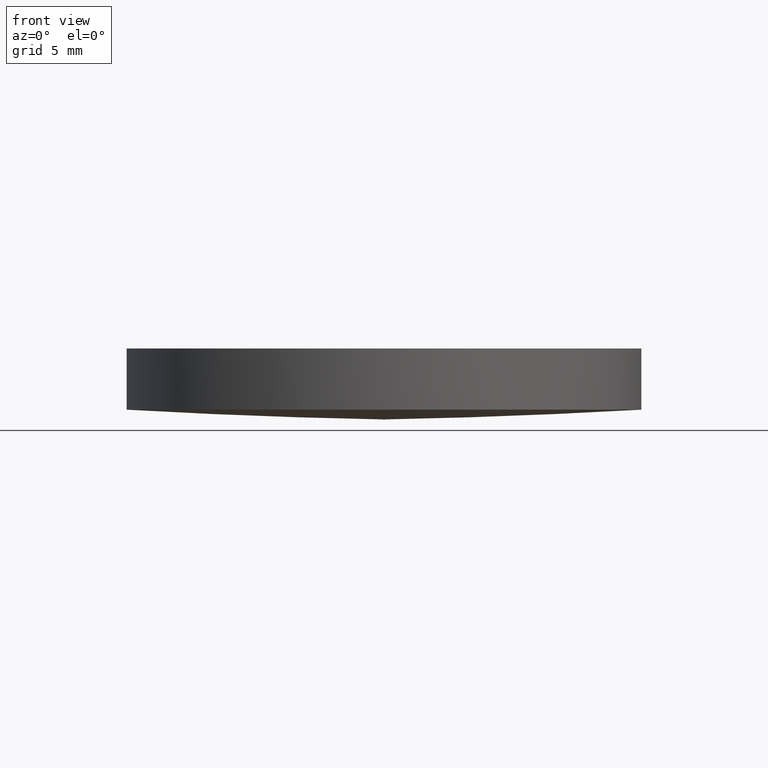
[diagram: clean part render]
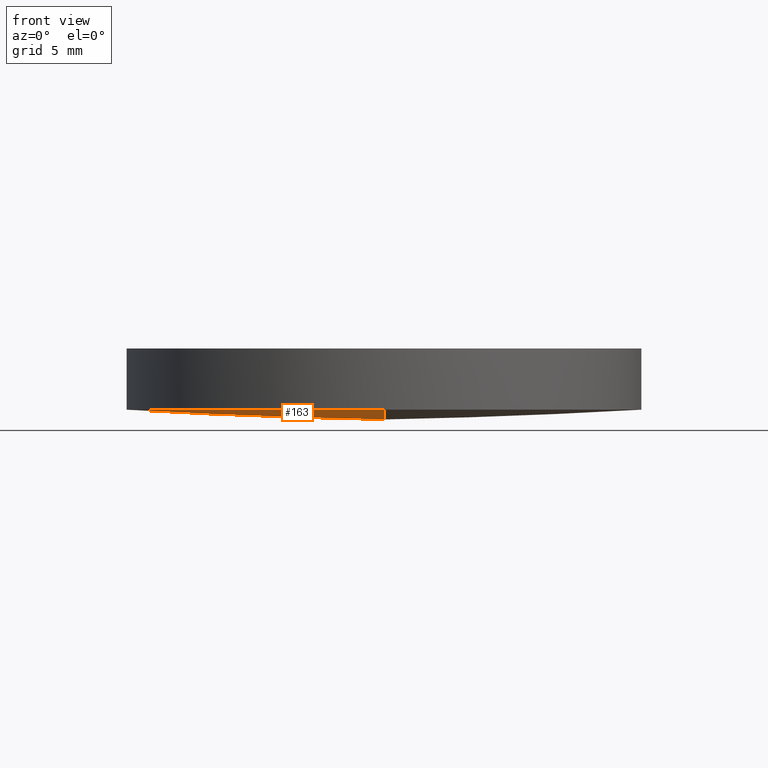
[diagram: same view with one face highlighted and labeled with its STEP entity id]
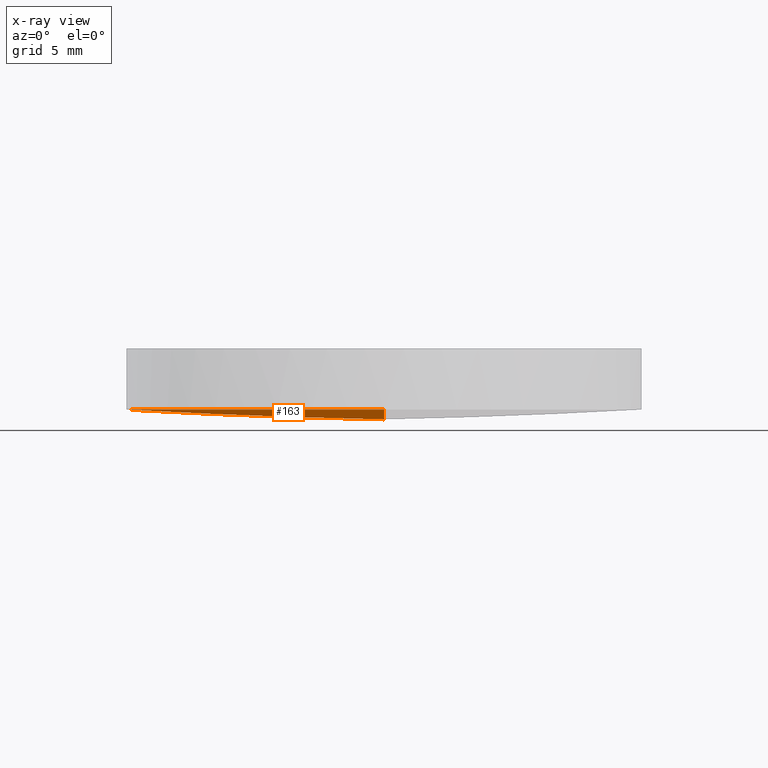
[diagram: x-ray of the same camera — body ghosted, the highlighted face saturated]
A machine part, front view. The second image highlights one B-rep face of the part: STEP entity #163.
The next image is the same camera in x-ray: the body ghosted, the highlighted face saturated — about 0% of this face is hidden behind the body in this view.
In plain terms, the highlighted face is a freeform B-spline surface patch.
Its self-contained STEP definition (entity closure, byte-faithful):
#4 = CARTESIAN_POINT ( 'NONE',  ( 4.566836338319999000E-014, 12.69999999999989300, 0.4827347065058701400 ) ) ;
#10 = CARTESIAN_POINT ( 'NONE',  ( -8.533044335085556000, 4.292490182803529600, -0.002032512706871977000 ) ) ;
#11 = CARTESIAN_POINT ( 'NONE',  ( -12.73829777343129700, -12.85210128437012300, 0.9814825029645646300 ) ) ;
#14 = AXIS2_PLACEMENT_3D ( 'NONE', #140, #34, #103 ) ;
#27 = VERTEX_POINT ( 'NONE', #4 ) ;
#28 = CARTESIAN_POINT ( 'NONE',  ( 0.0000000000000000000, 0.0000000000000000000, 167.3000000000000100 ) ) ;
#31 = CARTESIAN_POINT ( 'NONE',  ( -12.78866154361474200, 4.292490182803529600, 0.3239042502452720900 ) ) ;
#33 = CARTESIAN_POINT ( 'NONE',  ( -8.499439857995314500, 12.85210128437013200, 0.6568293304935412000 ) ) ;
#34 = DIRECTION ( 'NONE',  ( -0.0000000000000000000, -0.0000000000000000000, -1.000000000000000000 ) ) ;
#49 = CARTESIAN_POINT ( 'NONE',  ( -8.499439857995303900, -12.85210128437012100, 0.6568293304935412000 ) ) ;
#50 = EDGE_CURVE ( 'NONE', #145, #27, #53, .T. ) ;
#53 = CIRCLE ( 'NONE', #226, 167.3000000000000100 ) ;
#58 = EDGE_LOOP ( 'NONE', ( #149, #235, #71 ) ) ;
#59 = DIRECTION ( 'NONE',  ( 1.000000000000000000, 0.0000000000000000000, 0.0000000000000000000 ) ) ;
#63 = VERTEX_POINT ( 'NONE', #97 ) ;
#70 = EDGE_CURVE ( 'NONE', #145, #63, #205, .T. ) ;
#71 = ORIENTED_EDGE ( 'NONE', *, *, #93, .T. ) ;
#82 = CARTESIAN_POINT ( 'NONE',  ( -12.78866154361473800, -4.292490182803522500, 0.3239042502452730300 ) ) ;
#83 = FACE_OUTER_BOUND ( 'NONE', #58, .T. ) ;
#85 = AXIS2_PLACEMENT_3D ( 'NONE', #115, #148, #59 ) ;
#93 = EDGE_CURVE ( 'NONE', #63, #27, #122, .T. ) ;
#97 = CARTESIAN_POINT ( 'NONE',  ( -12.69999999999999900, 3.997792089092478900E-015, 0.4827347065058740800 ) ) ;
#103 = DIRECTION ( 'NONE',  ( 1.000000000000000000, 0.0000000000000000000, 0.0000000000000000000 ) ) ;
#105 = CARTESIAN_POINT ( 'NONE',  ( -4.268080669220456300, -4.292490182803518000, -0.1651199978920573900 ) ) ;
#115 = CARTESIAN_POINT ( 'NONE',  ( 4.996003610813200500E-016, 2.442490654175340100E-015, 0.4827347065058740800 ) ) ;
#118 = CARTESIAN_POINT ( 'NONE',  ( 1.214306433183765000E-014, -4.292490182803518000, -0.1651199978920570900 ) ) ;
#122 = CIRCLE ( 'NONE', #14, 12.69999999999999900 ) ;
#137 = CARTESIAN_POINT ( 'NONE',  ( -4.268080669220459800, 4.292490182803530500, -0.1651199978920584700 ) ) ;
#139 = CARTESIAN_POINT ( 'NONE',  ( -12.73829777343130800, 12.85210128437012900, 0.9814825029645646300 ) ) ;
#140 = CARTESIAN_POINT ( 'NONE',  ( 4.996003610813200500E-016, 2.442490654175340100E-015, 0.4827347065058740800 ) ) ;
#145 = VERTEX_POINT ( 'NONE', #161 ) ;
#148 = DIRECTION ( 'NONE',  ( -0.0000000000000000000, -0.0000000000000000000, -1.000000000000000000 ) ) ;
#149 = ORIENTED_EDGE ( 'NONE', *, *, #50, .F. ) ;
#157 = CARTESIAN_POINT ( 'NONE',  ( 8.673617379884033900E-015, 4.292490182803533100, -0.1651199978920582000 ) ) ;
#158 = CARTESIAN_POINT ( 'NONE',  ( -4.251272293049442700, 12.85210128437013400, 0.4943841095981438300 ) ) ;
#161 = CARTESIAN_POINT ( 'NONE',  ( 5.449188795093373900E-014, -12.69999999999989300, 0.4827347065058701400 ) ) ;
#163 = ADVANCED_FACE ( 'NONE', ( #83 ), #171, .T. ) ;
#171 =( BOUNDED_SURFACE ( )  B_SPLINE_SURFACE ( 3, 3, ( 
 ( #11, #49, #198, #176 ),
 ( #82, #217, #105, #118 ),
 ( #31, #10, #137, #157 ),
 ( #139, #33, #158, #182 ) ),
 .UNSPECIFIED., .F., .F., .F. ) 
 B_SPLINE_SURFACE_WITH_KNOTS ( ( 4, 4 ),
 ( 4, 4 ),
 ( 0.0000000000000000000, 1.000000000000000000 ),
 ( 0.0000000000000000000, 1.000000000000000000 ),
 .UNSPECIFIED. ) 
 GEOMETRIC_REPRESENTATION_ITEM ( )  RATIONAL_B_SPLINE_SURFACE ( (
 ( 1.000000000000000000, 0.9995131295779148300, 0.9995131295779148300, 1.000000000000000000),
 ( 0.9980299497525477700, 0.9975440384896581100, 0.9975440384896581100, 0.9980299497525477700),
 ( 0.9980299497525477700, 0.9975440384896581100, 0.9975440384896581100, 0.9980299497525477700),
 ( 1.000000000000000000, 0.9995131295779148300, 0.9995131295779148300, 1.000000000000000000) ) ) 
 REPRESENTATION_ITEM ( '' )  SURFACE ( )  );
#173 = DIRECTION ( 'NONE',  ( 1.000000000000000000, 3.473828569973949900E-016, 3.002094871832189900E-016 ) ) ;
#176 = CARTESIAN_POINT ( 'NONE',  ( 1.387778780781445700E-014, -12.85210128437011800, 0.4943841095981441100 ) ) ;
#182 = CARTESIAN_POINT ( 'NONE',  ( 3.469446951953614200E-015, 12.85210128437013400, 0.4943841095981438800 ) ) ;
#190 = DIRECTION ( 'NONE',  ( 3.473828569973949900E-016, -1.000000000000000000, 0.0000000000000000000 ) ) ;
#198 = CARTESIAN_POINT ( 'NONE',  ( -4.251272293049432900, -12.85210128437012000, 0.4943841095981439900 ) ) ;
#205 = CIRCLE ( 'NONE', #85, 12.69999999999999900 ) ;
#217 = CARTESIAN_POINT ( 'NONE',  ( -8.533044335085552500, -4.292490182803518900, -0.002032512706871001200 ) ) ;
#226 = AXIS2_PLACEMENT_3D ( 'NONE', #28, #173, #190 ) ;
#235 = ORIENTED_EDGE ( 'NONE', *, *, #70, .T. ) ;